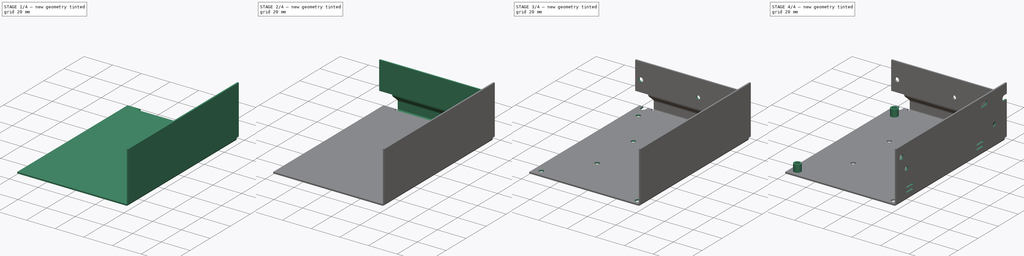
[diagram: build sequence overview — one tinted view per stage of 4, left to right]
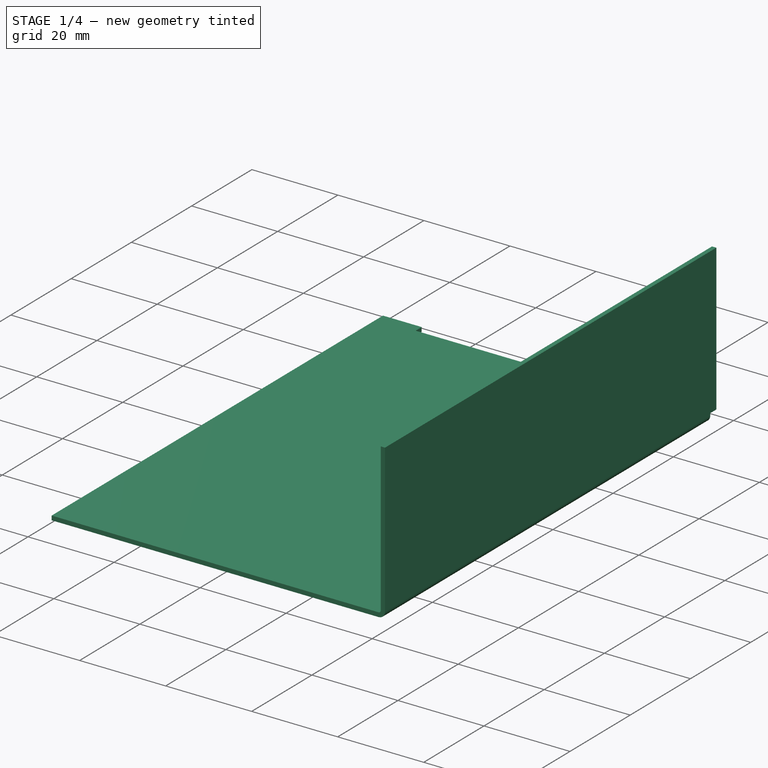
[diagram: stage 1 of 4 — iso view after this stage's code; geometry added in this stage tinted green]
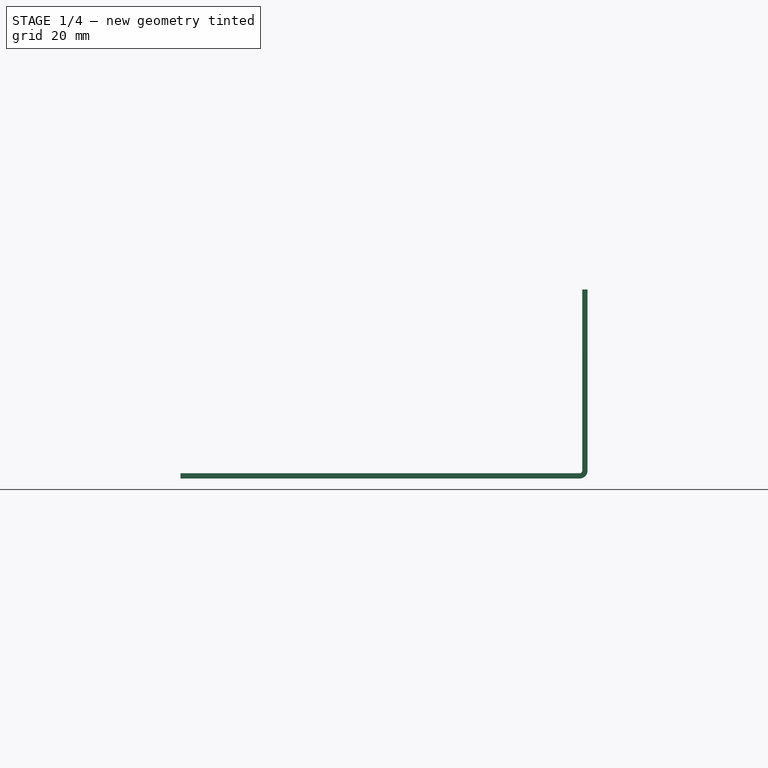
[diagram: stage 1 of 4 — front view after this stage's code; geometry added in this stage tinted green]
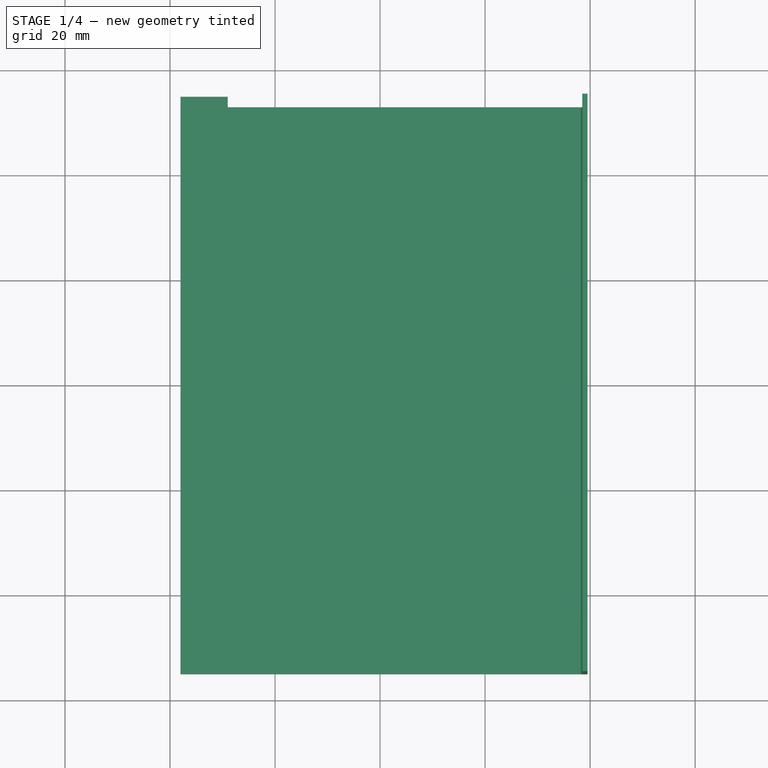
[diagram: stage 1 of 4 — top view after this stage's code; geometry added in this stage tinted green]
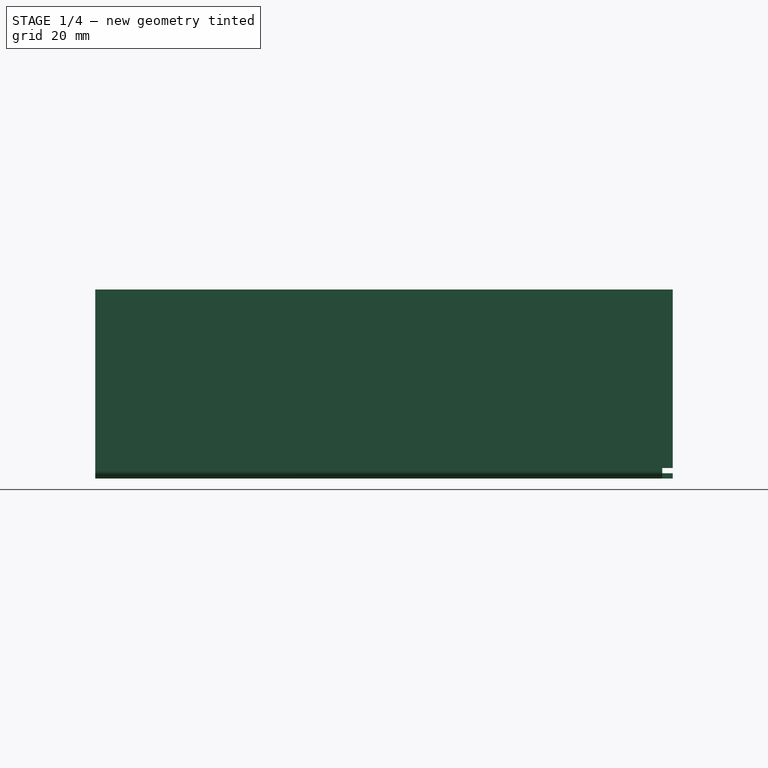
[diagram: stage 1 of 4 — right view after this stage's code; geometry added in this stage tinted green]
FCSTD DOCUMENT  (FreeCAD 0.19R23058 (Git))
Label: bottom_shell
License: All rights reserved
LicenseURL: http://en.wikipedia.org/wiki/All_rights_reserved
objects: PartDesign::Line×17, Sketcher::SketchObject×9, PartDesign::Pocket×5, PartDesign::Pad×4, PartDesign::Plane×1, PartDesign::CoordinateSystem×1, PartDesign::Point×1, PartDesign::Body×1
note: 48 computed .brp shape members not serialized (recipe doc carries the construction recipe); baked Part::Feature solids carry a one-line shape summary decoded from their .brp

FEATURE [Sketcher::SketchObject] Sketch
  MapMode = 5
  Placement = pos=(0,0,0) rot=(1,0,0;1.5708rad)
  Support = -> [XZ_Plane]
  sketch-geometry (8):
    g0: LineSegment StartX=-38 StartY=1 StartZ=0 EndX=-38 EndY=0 EndZ=0
    g1: LineSegment StartX=-38 StartY=0 StartZ=0 EndX=38 EndY=0 EndZ=0
    g2: LineSegment StartX=39.5 StartY=1.5 StartZ=0 EndX=39.5 EndY=36 EndZ=0
    g3: LineSegment StartX=39.5 StartY=36 StartZ=0 EndX=38.5 EndY=36 EndZ=0
    g4: LineSegment StartX=38.5 StartY=36 StartZ=0 EndX=38.5 EndY=1.5 EndZ=0
    g5: LineSegment StartX=38 StartY=1 StartZ=0 EndX=-38 EndY=1 EndZ=0
    g6: ArcOfCircle CenterX=38 CenterY=1.5 CenterZ=0 NormalX=0 NormalY=0 NormalZ=1 AngleXU=0 Radius=0.5 StartAngle=4.71239 EndAngle=6.28319
    g7: ArcOfCircle CenterX=38 CenterY=1.5 CenterZ=0 NormalX=0 NormalY=0 NormalZ=1 AngleXU=0 Radius=1.5 StartAngle=4.71239 EndAngle=6.28319
  constraints (20):
    c: Coincident(g0,g1)
    c: Vertical(g2)
    c: Coincident(g2,g3)
    c: Coincident(g3,g4)
    c: Vertical(g4)
    c: Coincident(g5,g0)
    c: Horizontal(g5)
    c: Tangent(g5,g6) = 1.5708
    c: Tangent(g4,g6) = 1.5708
    c: Tangent(g1,g7) = -1.5708
    c: Tangent(g2,g7) = -1.5708
    c: Vertical(g0)
    c: Horizontal(g3)
    c: PointOnObject(g0,g-1)
    c: Symmetric(g0,g1,g-2)
    c: DistanceY(g0,g0) = 1
    c: Radius(g7) = 1.5
    c: DistanceX(g1,g1) = 76
    c: DistanceY(g2,g2) = 34.5
    c: Coincident(g6,g7)
FEATURE [PartDesign::Pad] Pad
  Direction = (1,1,1)
  Length = 110
  Length2 = 100
  Midplane = true
  Placement = pos=(0,0,0) rot=(1,0,0;1.5708rad)
  Profile = -> Sketch
  Type = 0
FEATURE [Sketcher::SketchObject] Sketch001
  ExternalGeometry = -> [Pad]
  MapMode = 5
  Placement = pos=(39.5,0,0) rot=(0.707107,0,0.707107;3.14159rad)
  Support = -> [Pad]
  sketch-geometry (4):
    g0: LineSegment StartX=-4.55e-14 StartY=-53 StartZ=0 EndX=2 EndY=-53 EndZ=0
    g1: LineSegment StartX=2 StartY=-53 StartZ=0 EndX=2 EndY=-55 EndZ=0
    g2: LineSegment StartX=2 StartY=-55 StartZ=0 EndX=-4.55e-14 EndY=-55 EndZ=0
    g3: LineSegment StartX=-4.55e-14 StartY=-55 StartZ=0 EndX=-4.55e-14 EndY=-53 EndZ=0
  constraints (11):
    c: Coincident(g0,g1)
    c: Coincident(g1,g2)
    c: Coincident(g2,g3)
    c: Coincident(g3,g0)
    c: Horizontal(g0)
    c: Horizontal(g2)
    c: Vertical(g1)
    c: Vertical(g3)
    c: DistanceX(g2,g2) = 2
    c: Equal(g2,g1)
    c: Coincident(g2,g-3)
FEATURE [PartDesign::Pocket] Pocket
  BaseFeature = -> Pad
  Length = 68.5
  Length2 = 100
  Placement = pos=(0,0,0) rot=(1,0,0;1.5708rad)
  Profile = -> Sketch001
  Type = 0
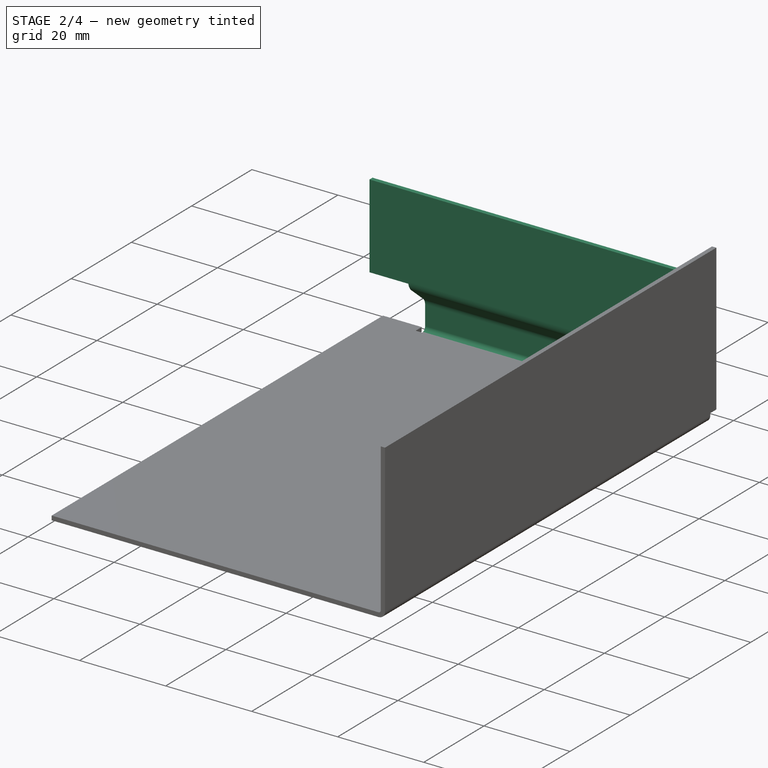
[diagram: stage 2 of 4 — iso view after this stage's code; geometry added in this stage tinted green]
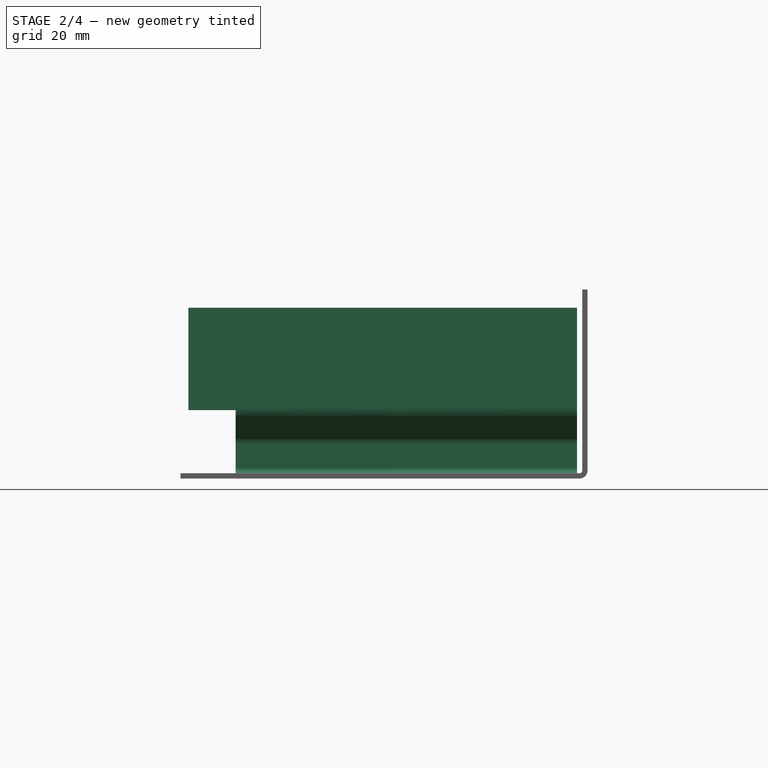
[diagram: stage 2 of 4 — front view after this stage's code; geometry added in this stage tinted green]
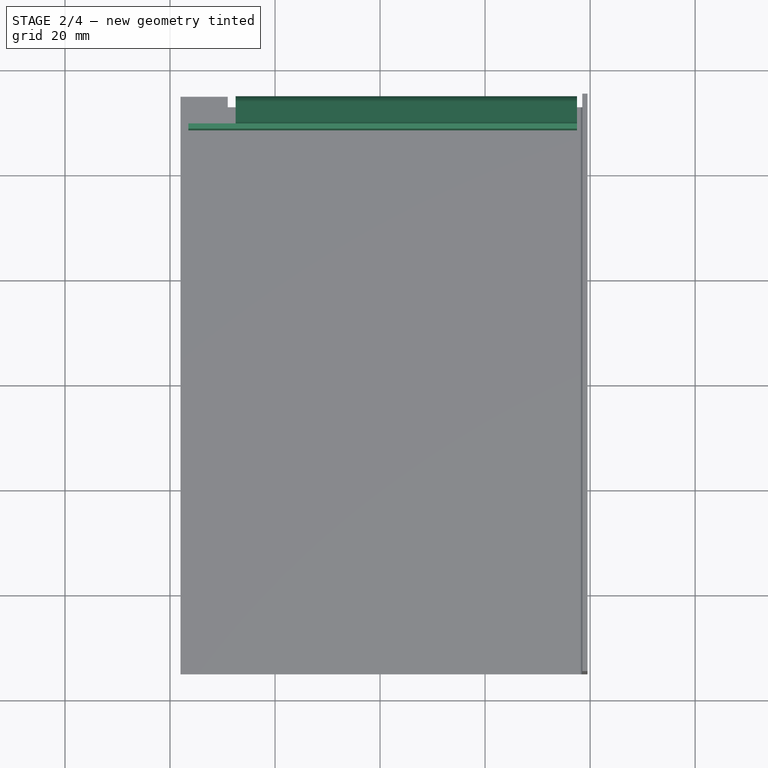
[diagram: stage 2 of 4 — top view after this stage's code; geometry added in this stage tinted green]
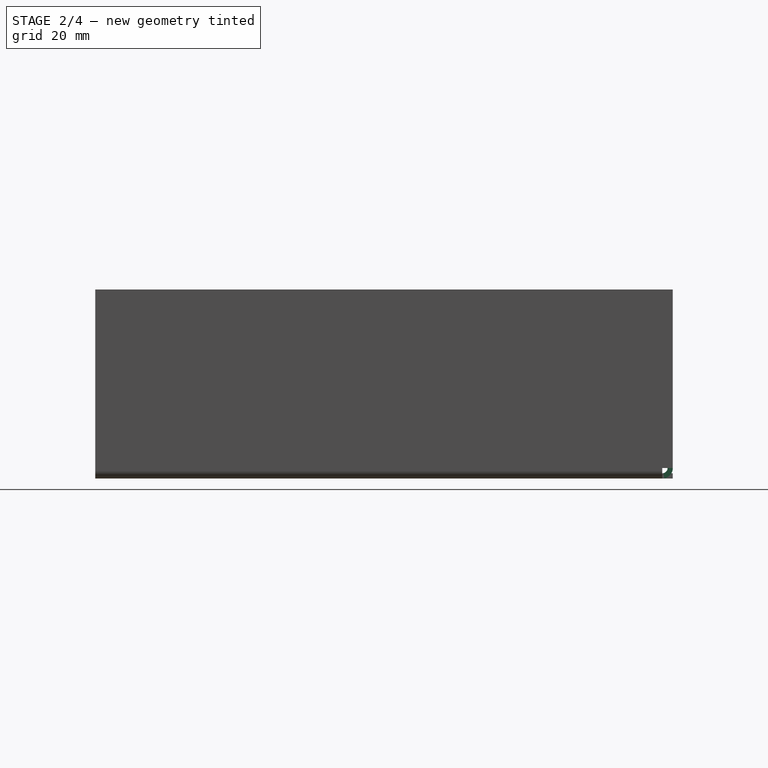
[diagram: stage 2 of 4 — right view after this stage's code; geometry added in this stage tinted green]
FEATURE [PartDesign::Plane] DatumPlane
  AttachmentOffset = pos=(0,0,-2) rot=(0,0,1;0rad)
  Length = 60
  MapMode = 5
  Placement = pos=(37.5,0,4e-16) rot=(0.707107,0,0.707107;3.14159rad)
  ResizeMode = 0
  Support = -> [Pocket]
  Width = 60
FEATURE [Sketcher::SketchObject] Sketch002
  ExternalGeometry = -> [Pocket]
  MapMode = 5
  Placement = pos=(37.5,0,4e-16) rot=(0.707107,0,0.707107;3.14159rad)
  Support = -> [DatumPlane]
  sketch-geometry (14):
    g0: ArcOfCircle CenterX=2 CenterY=-53 CenterZ=0 NormalX=0 NormalY=0 NormalZ=1 AngleXU=0 Radius=2 StartAngle=3.1416 EndAngle=4.71239
    g1: LineSegment StartX=2 StartY=-55 StartZ=0 EndX=6.48793 EndY=-55 EndZ=0
    g2: ArcOfCircle CenterX=6.48793 CenterY=-52 CenterZ=0 NormalX=0 NormalY=0 NormalZ=1 AngleXU=0 Radius=3 StartAngle=4.71239 EndAngle=5.58505
    g3: LineSegment StartX=8.78606 StartY=-53.9284 StartZ=0 EndX=12 EndY=-50.0981 EndZ=0
    g4: ArcOfCircle CenterX=13.5321 CenterY=-51.3837 CenterZ=0 NormalX=0 NormalY=0 NormalZ=1 AngleXU=0 Radius=2 StartAngle=1.5708 EndAngle=2.44346
    g5: LineSegment StartX=13.5321 StartY=-49.3837 StartZ=0 EndX=32.5321 EndY=-49.3837 EndZ=0
    g6: LineSegment StartX=32.5321 StartY=-49.3837 StartZ=0 EndX=32.5321 EndY=-48.3837 EndZ=0
    g7: LineSegment StartX=32.5321 StartY=-48.3837 StartZ=0 EndX=13.5321 EndY=-48.3837 EndZ=0
    g8: LineSegment StartX=11.234 StartY=-49.4553 StartZ=0 EndX=8.02002 EndY=-53.2856 EndZ=0
    g9: LineSegment StartX=6.48793 StartY=-54 StartZ=0 EndX=2 EndY=-54 EndZ=0
    g10: ArcOfCircle CenterX=13.5321 CenterY=-51.3837 CenterZ=0 NormalX=0 NormalY=0 NormalZ=1 AngleXU=0 Radius=3 StartAngle=1.5708 EndAngle=2.44346
    g11: ArcOfCircle CenterX=6.48793 CenterY=-52 CenterZ=0 NormalX=0 NormalY=0 NormalZ=1 AngleXU=0 Radius=2 StartAngle=4.71239 EndAngle=5.58505
    g12: ArcOfCircle CenterX=2 CenterY=-53 CenterZ=0 NormalX=0 NormalY=0 NormalZ=1 AngleXU=0 Radius=1 StartAngle=3.1416 EndAngle=4.71239
    g13: LineSegment StartX=1.47167e-11 StartY=-53 StartZ=0 EndX=1 EndY=-53 EndZ=0
  constraints (34):
    c: Horizontal(g1)
    c: Horizontal(g5)
    c: Coincident(g5,g6)
    c: Vertical(g6)
    c: Coincident(g6,g7)
    c: Horizontal(g7)
    c: Horizontal(g9)
    c: Tangent(g0,g1) = -1.5708
    c: Tangent(g1,g2) = -1.5708
    c: Tangent(g2,g3) = -1.5708
    c: Tangent(g3,g4) = 1.5708
    c: Tangent(g4,g5) = 1.5708
    c: Coincident(g13,g0)
    c: Coincident(g13,g12)
    c: Horizontal(g13)
    c: Tangent(g12,g9) = 1.5708
    c: Tangent(g9,g11) = 1.5708
    c: Tangent(g11,g8) = 1.5708
    c: Tangent(g8,g10) = -1.5708
    c: Tangent(g10,g7) = -1.5708
    c: Tangent(g0,g-2)
    c: DistanceX(g13,g13) = 1
    c: Coincident(g0,g12)
    c: Coincident(g2,g11)
    c: Coincident(g4,g10)
    c: Parallel(g8,g3)
    c: Radius(g0) = 2
    c: Distance(g3) = 5
    c: DistanceX(g5,g5) = 19
    c: Angle(g3,g-2) = 0.698132
    c: Equal(g2,g10)
    c: Radius(g2) = 3
    c: Coincident(g0,g-3)
    c: DistanceX(g0,g3) = 12
FEATURE [PartDesign::Pad] Pad001
  BaseFeature = -> Pocket
  Direction = (1,1,1)
  Length = 65
  Length2 = 100
  Placement = pos=(0,0,0) rot=(1,0,0;1.5708rad)
  Profile = -> Sketch002
  Reversed = true
  Type = 0
FEATURE [Sketcher::SketchObject] Sketch003
  ExternalGeometry = -> [Pad001]
  MapMode = 5
  Placement = pos=(-27.5,1.35e-14,9.4e-15) rot=(-0.707107,0,0.707107;3.14159rad)
  Support = -> [Pad001]
  sketch-geometry (4):
    g0: LineSegment StartX=-32.5321 StartY=-48.3837 StartZ=0 EndX=-13.0321 EndY=-48.3837 EndZ=0
    g1: LineSegment StartX=-13.0321 StartY=-48.3837 StartZ=0 EndX=-13.0321 EndY=-49.3837 EndZ=0
    g2: LineSegment StartX=-13.0321 StartY=-49.3837 StartZ=0 EndX=-32.5321 EndY=-49.3837 EndZ=0
    g3: LineSegment StartX=-32.5321 StartY=-49.3837 StartZ=0 EndX=-32.5321 EndY=-48.3837 EndZ=0
  constraints (10):
    c: Coincident(g0,g1)
    c: Coincident(g1,g2)
    c: Coincident(g2,g3)
    c: Coincident(g3,g0)
    c: Horizontal(g0)
    c: Horizontal(g2)
    c: Vertical(g1)
    c: Coincident(g0,g-3)
    c: Coincident(g2,g-3)
    c: DistanceX(g2,g2) = 19.5
FEATURE [PartDesign::Pad] Pad002
  BaseFeature = -> Pad001
  Direction = (1,1,1)
  Length = 9
  Length2 = 100
  Placement = pos=(0,0,0) rot=(1,0,0;1.5708rad)
  Profile = -> Sketch003
  Type = 0
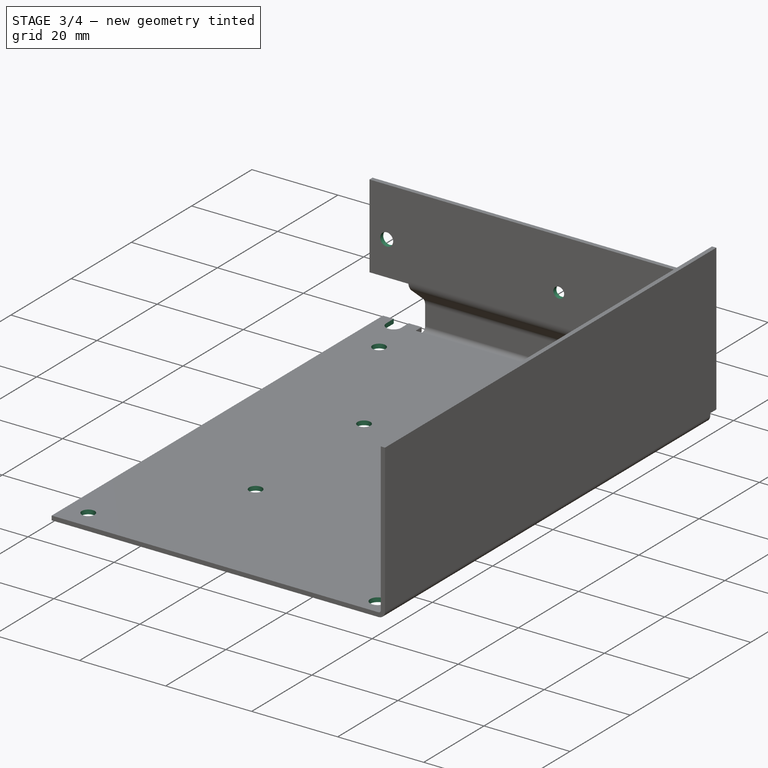
[diagram: stage 3 of 4 — iso view after this stage's code; geometry added in this stage tinted green]
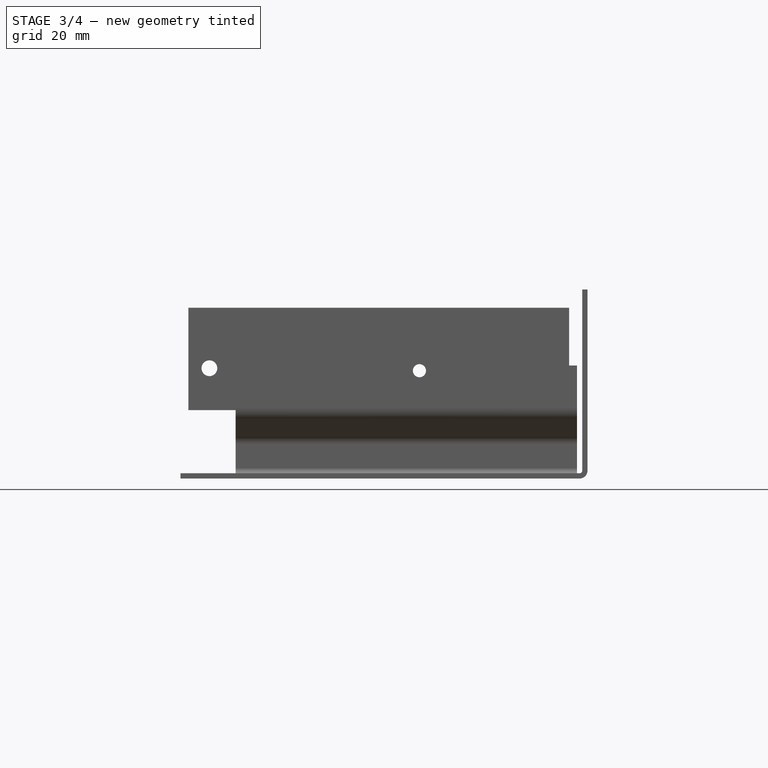
[diagram: stage 3 of 4 — front view after this stage's code; geometry added in this stage tinted green]
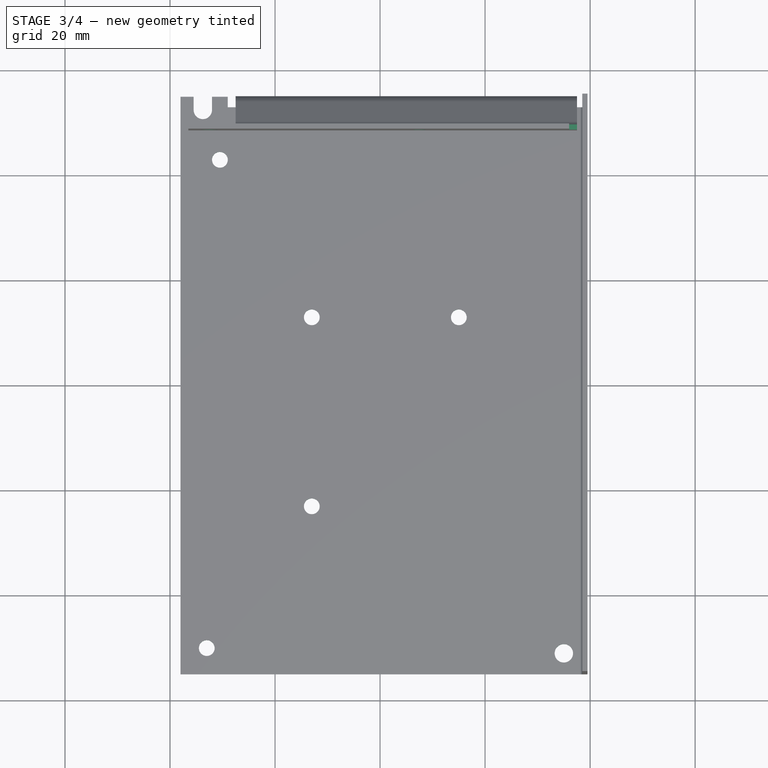
[diagram: stage 3 of 4 — top view after this stage's code; geometry added in this stage tinted green]
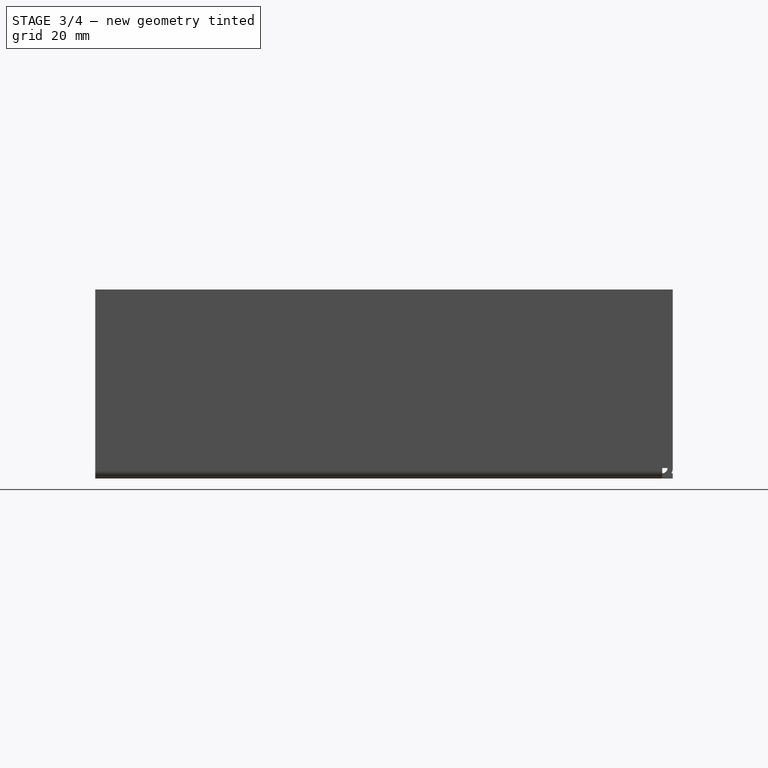
[diagram: stage 3 of 4 — right view after this stage's code; geometry added in this stage tinted green]
FEATURE [Sketcher::SketchObject] Sketch004
  ExternalGeometry = -> [Pad002]
  MapMode = 5
  Placement = pos=(0,49.3837,0) rot=(-1,0,0;1.5708rad)
  Support = -> [Pad002]
  sketch-geometry (4):
    g0: LineSegment StartX=37.5 StartY=-32.5321 StartZ=0 EndX=36 EndY=-32.5321 EndZ=0
    g1: LineSegment StartX=36 StartY=-32.5321 StartZ=0 EndX=36 EndY=-21.5321 EndZ=0
    g2: LineSegment StartX=36 StartY=-21.5321 StartZ=0 EndX=37.5 EndY=-21.5321 EndZ=0
    g3: LineSegment StartX=37.5 StartY=-21.5321 StartZ=0 EndX=37.5 EndY=-32.5321 EndZ=0
  constraints (11):
    c: Coincident(g0,g1)
    c: Coincident(g1,g2)
    c: Coincident(g2,g3)
    c: Coincident(g3,g0)
    c: Horizontal(g0)
    c: Horizontal(g2)
    c: Vertical(g1)
    c: Vertical(g3)
    c: Coincident(g0,g-3)
    c: DistanceX(g0,g0) = 1.5
    c: DistanceY(g1,g1) = 11
FEATURE [PartDesign::Pocket] Pocket001
  BaseFeature = -> Pad002
  Length = 5
  Length2 = 100
  Placement = pos=(0,0,0) rot=(1,0,0;1.5708rad)
  Profile = -> Sketch004
  Type = 0
FEATURE [Sketcher::SketchObject] Sketch005
  ExternalGeometry = -> [Pocket001]
  MapMode = 5
  Placement = pos=(0,49.3837,0) rot=(-1,0,0;1.5708rad)
  Support = -> [Pocket001]
  sketch-geometry (2):
    g0: Circle CenterX=7.5 CenterY=-20.5321 CenterZ=0 NormalX=0 NormalY=0 NormalZ=1 AngleXU=0 Radius=1.25
    g1: Circle CenterX=-32.5 CenterY=-21 CenterZ=0 NormalX=0 NormalY=0 NormalZ=1 AngleXU=0 Radius=1.5
  constraints (6):
    c: DistanceY(g-3,g0) = 12
    c: DistanceX(g0,g-4) = 30
    c: DistanceX(g1,g-4) = 70
    c: Radius(g0) = 1.25
    c: Radius(g1) = 1.5
    c: DistanceY(g1,g-1) = 21
FEATURE [PartDesign::Pocket] Pocket002
  BaseFeature = -> Pocket001
  Length = 5
  Length2 = 100
  Placement = pos=(0,0,0) rot=(1,0,0;1.5708rad)
  Profile = -> Sketch005
  Type = 0
FEATURE [PartDesign::Line] HoleAxis_1
  AttacherType = Attacher::AttachEngineLine
  Length = 3.52267
  MapMode = 19
  Placement = pos=(7.5,49.3837,20.5321) rot=(-1,0,0;1.5708rad)
  ResizeMode = 1
  Support = -> [Pocket002]
FEATURE [PartDesign::Line] HoleAxis_2
  AttacherType = Attacher::AttachEngineLine
  Length = 4.2272
  MapMode = 19
  Placement = pos=(-32.5,49.3837,21) rot=(-1,0,0;1.5708rad)
  ResizeMode = 1
  Support = -> [Pocket002]
FEATURE [Sketcher::SketchObject] Sketch006
  ExternalGeometry = -> [Pocket002]
  MapMode = 5
  Placement = pos=(0,0,0) rot=(1,0,0;3.14159rad)
  Support = -> [Pocket002]
  sketch-geometry (14):
    g0: ArcOfCircle CenterX=-33.75 CenterY=-52.5 CenterZ=0 NormalX=0 NormalY=0 NormalZ=1 AngleXU=0 Radius=1.75 StartAngle=0 EndAngle=3.14159
    g1: LineSegment StartX=-32 StartY=-52.5 StartZ=0 EndX=-32 EndY=-55 EndZ=0
    g2: LineSegment StartX=-32 StartY=-55 StartZ=0 EndX=-35.5 EndY=-55 EndZ=0
    g3: LineSegment StartX=-35.5 StartY=-55 StartZ=0 EndX=-35.5 EndY=-52.5 EndZ=0
    g4: LineSegment [constr] StartX=-13 StartY=23 StartZ=0 EndX=15 EndY=23 EndZ=0
    g5: LineSegment [constr] StartX=15 StartY=23 StartZ=0 EndX=15 EndY=-13 EndZ=0
    g6: LineSegment [constr] StartX=15 StartY=-13 StartZ=0 EndX=-13 EndY=-13 EndZ=0
    g7: LineSegment [constr] StartX=-13 StartY=-13 StartZ=0 EndX=-13 EndY=23 EndZ=0
    g8: Circle CenterX=-33 CenterY=50 CenterZ=0 NormalX=0 NormalY=0 NormalZ=1 AngleXU=0 Radius=1.5
    g9: Circle CenterX=-30.5 CenterY=-43 CenterZ=0 NormalX=0 NormalY=0 NormalZ=1 AngleXU=0 Radius=1.5
    g10: Circle CenterX=35 CenterY=51 CenterZ=0 NormalX=0 NormalY=0 NormalZ=1 AngleXU=0 Radius=1.75
    g11: Circle CenterX=-13 CenterY=23 CenterZ=0 NormalX=0 NormalY=0 NormalZ=1 AngleXU=0 Radius=1.5
    g12: Circle CenterX=-13 CenterY=-13 CenterZ=0 NormalX=0 NormalY=0 NormalZ=1 AngleXU=0 Radius=1.5
    g13: Circle CenterX=15 CenterY=-13 CenterZ=0 NormalX=0 NormalY=0 NormalZ=1 AngleXU=0 Radius=1.5
  constraints (38):
    c: Coincident(g1,g2)
    c: Coincident(g2,g3)
    c: Horizontal(g2)
    c: Vertical(g1)
    c: Vertical(g3)
    c: Tangent(g3,g0) = 1.5708
    c: Tangent(g1,g0) = 1.5708
    c: DistanceY(g3,g3) = 2.5
    c: DistanceX(g2,g2) = 3.5
    c: PointOnObject(g2,g-3)
    c: DistanceX(g-3,g2) = 2.5
    c: Coincident(g4,g5)
    c: Coincident(g5,g6)
    c: Coincident(g6,g7)
    c: Coincident(g7,g4)
    c: Horizontal(g4)
    c: Horizontal(g6)
    c: Vertical(g5)
    c: Vertical(g7)
    c: Coincident(g11,g4)
    c: Coincident(g12,g6)
    c: Coincident(g13,g5)
    c: Radius(g11) = 1.5
    c: Equal(g11,g12)
    c: Equal(g12,g13)
    c: Equal(g8,g11)
    c: Equal(g11,g9)
    c: DistanceY(g7,g7) = 36
    c: DistanceX(g6,g6) = 28
    c: DistanceX(g-3,g12) = 25
    c: DistanceY(g11,g-4) = 32
    c: DistanceY(g8,g-4) = 5
    c: DistanceX(g-4,g8) = 5
    c: DistanceY(g-3,g9) = 12
    c: DistanceX(g-3,g9) = 7.5
    c: DistanceX(g10,g-4) = 3
    c: Radius(g10) = 1.75
    c: DistanceY(g10,g-4) = 4
FEATURE [PartDesign::Pocket] Pocket003
  BaseFeature = -> Pocket002
  Length = 5
  Length2 = 100
  Placement = pos=(0,0,0) rot=(1,0,0;1.5708rad)
  Profile = -> Sketch006
  Type = 0
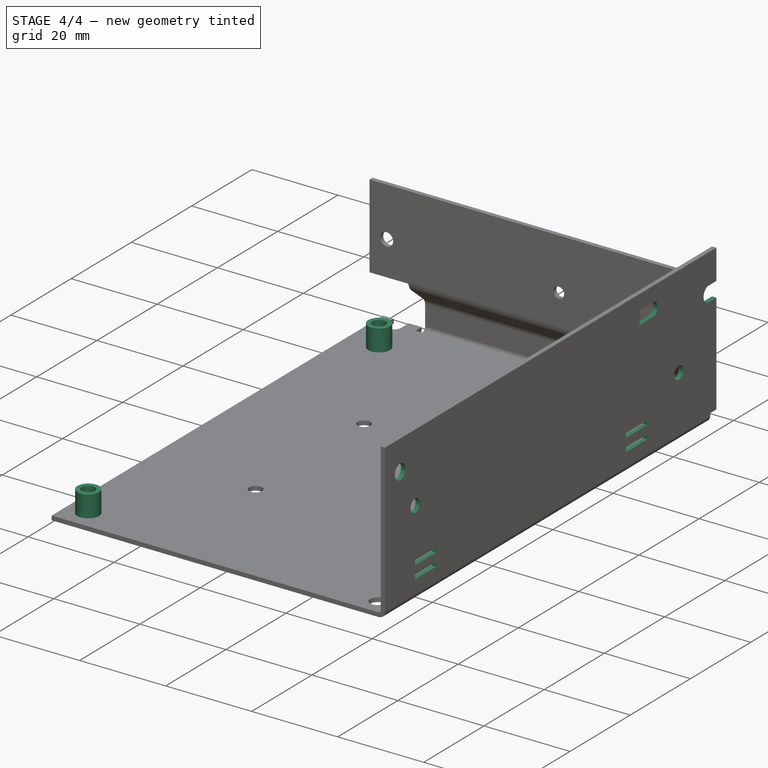
[diagram: stage 4 of 4 — iso view after this stage's code; geometry added in this stage tinted green]
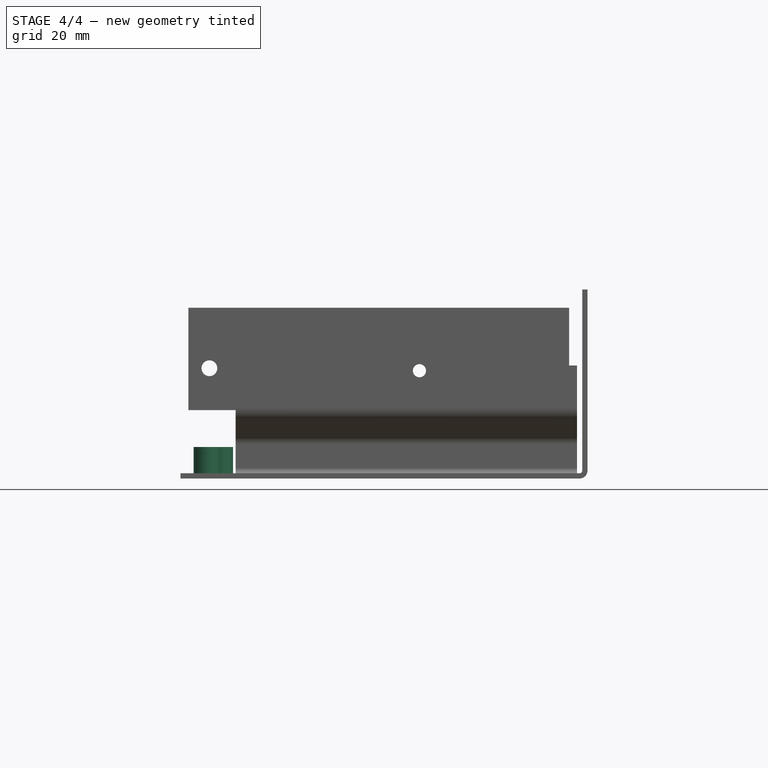
[diagram: stage 4 of 4 — front view after this stage's code; geometry added in this stage tinted green]
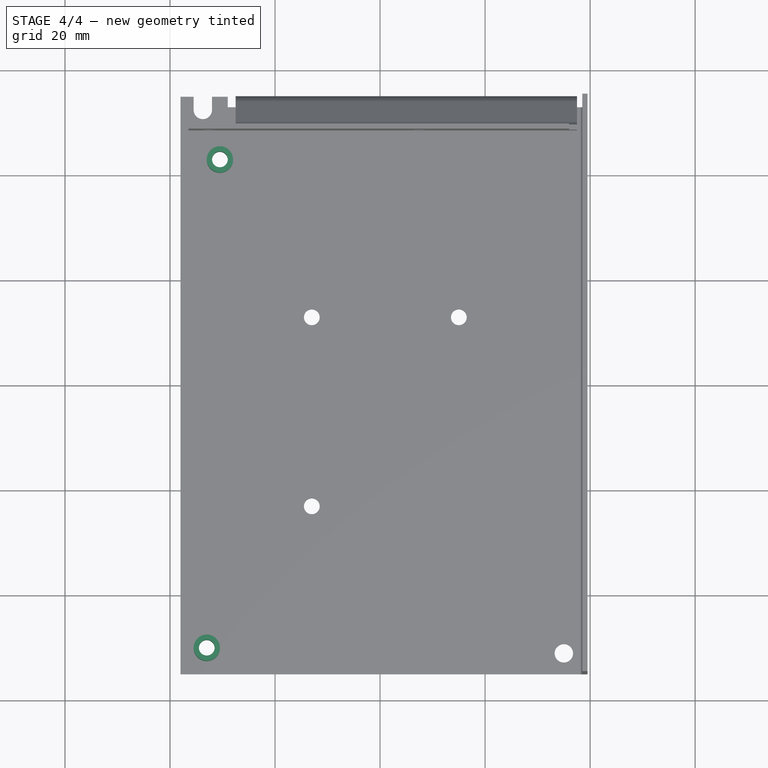
[diagram: stage 4 of 4 — top view after this stage's code; geometry added in this stage tinted green]
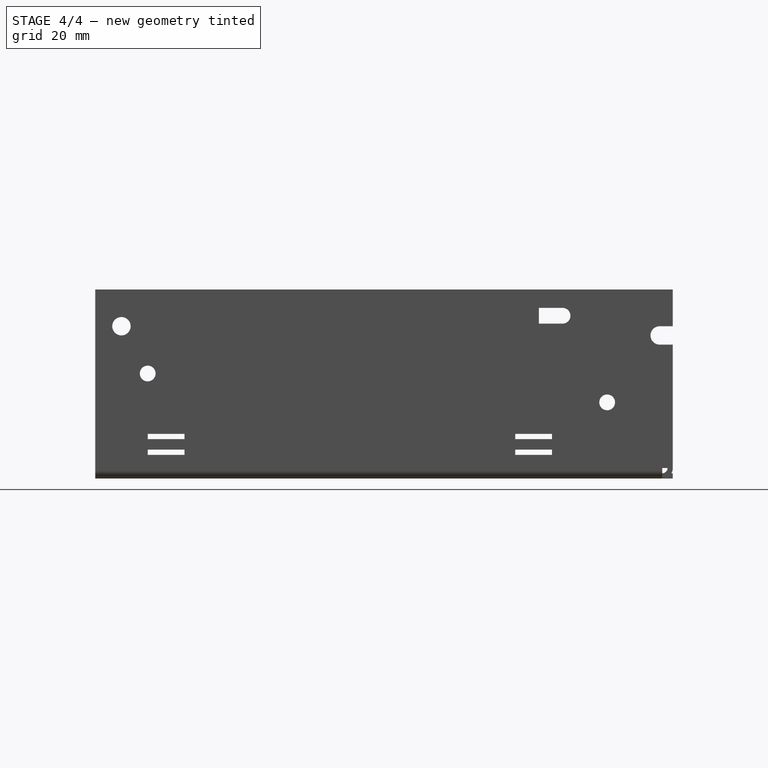
[diagram: stage 4 of 4 — right view after this stage's code; geometry added in this stage tinted green]
FEATURE [Sketcher::SketchObject] Sketch007
  ExternalGeometry = -> [Pocket003]
  MapMode = 5
  Placement = pos=(39.5,0,0) rot=(0.707107,0,0.707107;3.14159rad)
  Support = -> [Pocket003]
  sketch-geometry (31):
    g0: Circle CenterX=29 CenterY=50 CenterZ=0 NormalX=0 NormalY=0 NormalZ=1 AngleXU=0 Radius=1.75
    g1: Circle CenterX=20 CenterY=45 CenterZ=0 NormalX=0 NormalY=0 NormalZ=1 AngleXU=0 Radius=1.5
    g2: Circle CenterX=14.5 CenterY=-42.5 CenterZ=0 NormalX=0 NormalY=0 NormalZ=1 AngleXU=0 Radius=1.5
    g3: LineSegment StartX=7.5 StartY=45 StartZ=0 EndX=8.5 EndY=45 EndZ=0
    g4: LineSegment StartX=8.5 StartY=45 StartZ=0 EndX=8.5 EndY=38 EndZ=0
    g5: LineSegment StartX=8.5 StartY=38 StartZ=0 EndX=7.5 EndY=38 EndZ=0
    g6: LineSegment StartX=7.5 StartY=38 StartZ=0 EndX=7.5 EndY=45 EndZ=0
    g7: LineSegment StartX=4.5 StartY=45 StartZ=0 EndX=5.5 EndY=45 EndZ=0
    g8: LineSegment StartX=5.5 StartY=45 StartZ=0 EndX=5.5 EndY=38 EndZ=0
    g9: LineSegment StartX=5.5 StartY=38 StartZ=0 EndX=4.5 EndY=38 EndZ=0
    g10: LineSegment StartX=4.5 StartY=38 StartZ=0 EndX=4.5 EndY=45 EndZ=0
    g11: LineSegment StartX=7.5 StartY=-25 StartZ=0 EndX=8.5 EndY=-25 EndZ=0
    g12: LineSegment StartX=8.5 StartY=-25 StartZ=0 EndX=8.5 EndY=-32 EndZ=0
    g13: LineSegment StartX=8.5 StartY=-32 StartZ=0 EndX=7.5 EndY=-32 EndZ=0
    g14: LineSegment StartX=7.5 StartY=-32 StartZ=0 EndX=7.5 EndY=-25 EndZ=0
    g15: LineSegment StartX=4.5 StartY=-25 StartZ=0 EndX=5.5 EndY=-25 EndZ=0
    g16: LineSegment StartX=5.5 StartY=-25 StartZ=0 EndX=5.5 EndY=-32 EndZ=0
    g17: LineSegment StartX=5.5 StartY=-32 StartZ=0 EndX=4.5 EndY=-32 EndZ=0
    g18: LineSegment StartX=4.5 StartY=-32 StartZ=0 EndX=4.5 EndY=-25 EndZ=0
    g19: LineSegment [constr] StartX=5.5 StartY=38 StartZ=0 EndX=7.5 EndY=38 EndZ=0
    g20: LineSegment [constr] StartX=7.5 StartY=38 StartZ=0 EndX=7.5 EndY=-25 EndZ=0
    g21: LineSegment [constr] StartX=7.5 StartY=-25 StartZ=0 EndX=5.5 EndY=-25 EndZ=0
    g22: LineSegment [constr] StartX=5.5 StartY=-25 StartZ=0 EndX=5.5 EndY=38 EndZ=0
    g23: ArcOfCircle CenterX=27.25 CenterY=-52.5 CenterZ=0 NormalX=0 NormalY=0 NormalZ=1 AngleXU=0 Radius=1.75 StartAngle=2e-16 EndAngle=3.14159
    g24: LineSegment StartX=25.5 StartY=-52.5 StartZ=0 EndX=25.5 EndY=-55 EndZ=0
    g25: LineSegment StartX=25.5 StartY=-55 StartZ=0 EndX=29 EndY=-55 EndZ=0
    g26: LineSegment StartX=29 StartY=-55 StartZ=0 EndX=29 EndY=-52.5 EndZ=0
    g27: ArcOfCircle CenterX=31 CenterY=-34 CenterZ=0 NormalX=0 NormalY=0 NormalZ=1 AngleXU=0 Radius=1.5 StartAngle=3.14159 EndAngle=6.28319
    g28: LineSegment StartX=29.5 StartY=-34 StartZ=0 EndX=29.5 EndY=-29.5 EndZ=0
    g29: LineSegment StartX=29.5 StartY=-29.5 StartZ=0 EndX=32.5 EndY=-29.5 EndZ=0
    g30: LineSegment StartX=32.5 StartY=-29.5 StartZ=0 EndX=32.5 EndY=-34 EndZ=0
  constraints (87):
    c: Coincident(g3,g4)
    c: Coincident(g4,g5)
    c: Coincident(g5,g6)
    c: Coincident(g6,g3)
    c: Horizontal(g3)
    c: Horizontal(g5)
    c: Vertical(g4)
    c: Vertical(g6)
    c: Coincident(g7,g8)
    c: Coincident(g8,g9)
    c: Coincident(g9,g10)
    c: Coincident(g10,g7)
    c: Horizontal(g7)
    c: Horizontal(g9)
    c: Vertical(g8)
    c: Vertical(g10)
    c: Coincident(g11,g12)
    c: Coincident(g12,g13)
    c: Coincident(g13,g14)
    c: Coincident(g14,g11)
    c: Horizontal(g11)
    c: Horizontal(g13)
    c: Vertical(g12)
    c: Vertical(g14)
    c: Coincident(g15,g16)
    c: Coincident(g16,g17)
    c: Coincident(g17,g18)
    c: Coincident(g18,g15)
    c: Horizontal(g15)
    c: Horizontal(g17)
    c: Vertical(g16)
    c: Vertical(g18)
    c: Coincident(g19,g20)
    c: Coincident(g20,g21)
    c: Coincident(g21,g22)
    c: Coincident(g22,g19)
    c: Horizontal(g19)
    c: Horizontal(g21)
    c: Vertical(g20)
    c: Vertical(g22)
    c: Coincident(g19,g8)
    c: Coincident(g20,g11)
    c: Coincident(g5,g19)
    c: Coincident(g15,g21)
    c: Equal(g15,g11)
    c: Equal(g11,g5)
    c: Equal(g5,g9)
    c: Equal(g10,g6)
    c: Equal(g6,g18)
    c: Equal(g18,g14)
    c: DistanceX(g7,g7) = 1
    c: DistanceY(g10,g10) = 7
    c: DistanceX(g19,g19) = 2
    c: DistanceY(g7,g-3) = 10
    c: Radius(g1) = 1.5
    c: Equal(g1,g2)
    c: Vertical(g24)
    c: Coincident(g24,g25)
    c: Horizontal(g25)
    c: Coincident(g25,g26)
    c: Vertical(g26)
    c: Tangent(g24,g23) = -1.5708
    c: Tangent(g26,g23) = -1.5708
    c: DistanceY(g26,g26) = 2.5
    c: DistanceX(g25,g25) = 3.5
    c: PointOnObject(g25,g-4)
    c: DistanceX(g25,g-4) = 7
    c: DistanceX(g-3,g7) = 3
    c: Radius(g0) = 1.75
    c: DistanceX(g0,g-3) = 7
    c: DistanceY(g0,g-3) = 5
    c: DistanceX(g1,g-3) = 16
    c: DistanceY(g1,g-3) = 10
    c: DistanceY(g-4,g2) = 12.5
    c: DistanceX(g2,g-4) = 21.5
    c: DistanceY(g22,g22) = 63
    c: Vertical(g28)
    c: Coincident(g28,g29)
    c: Horizontal(g29)
    c: Coincident(g29,g30)
    c: Vertical(g30)
    c: Tangent(g27,g28) = 1.5708
    c: Tangent(g30,g27) = 1.5708
    c: DistanceX(g29,g29) = 3
    c: DistanceY(g30,g30) = 4.5
    c: DistanceX(g27,g-4) = 5
    c: DistanceY(g-4,g27) = 21
FEATURE [PartDesign::Pocket] Pocket004
  BaseFeature = -> Pocket003
  Length = 5
  Length2 = 100
  Placement = pos=(0,0,0) rot=(1,0,0;1.5708rad)
  Profile = -> Sketch007
  Type = 0
FEATURE [PartDesign::CoordinateSystem] LCS_1
  AttacherType = Attacher::AttachEngine3D
FEATURE [PartDesign::Line] HoleAxis_3  label="Screw_1"
  AttacherType = Attacher::AttachEngineLine
  Length = 4.2272
  MapMode = 19
  Placement = pos=(-13,-23,0) rot=(-1,0,0;3.14159rad)
  ResizeMode = 1
  Support = -> [Pocket004]
FEATURE [PartDesign::Line] HoleAxis_4  label="Screw_2"
  AttacherType = Attacher::AttachEngineLine
  Length = 4.2272
  MapMode = 19
  Placement = pos=(-13,13,0) rot=(-1,0,0;3.14159rad)
  ResizeMode = 1
  Support = -> [Pocket004]
FEATURE [PartDesign::Line] HoleAxis_5  label="Screw_3"
  AttacherType = Attacher::AttachEngineLine
  Length = 4.2272
  MapMode = 19
  Placement = pos=(15,13,0) rot=(-1,0,0;3.14159rad)
  ResizeMode = 1
  Support = -> [Pocket004]
FEATURE [PartDesign::Line] HoleAxis_6  label="Screw_4"
  AttacherType = Attacher::AttachEngineLine
  Length = 4.2272
  MapMode = 19
  Placement = pos=(39.5,-45,20) rot=(0.707107,0,0.707107;3.14159rad)
  ResizeMode = 1
  Support = -> [Pocket004]
FEATURE [PartDesign::Line] HoleAxis_7  label="Screw_5"
  AttacherType = Attacher::AttachEngineLine
  Length = 4.2272
  MapMode = 19
  Placement = pos=(39.5,42.5,14.5) rot=(0.707107,0,0.707107;3.14159rad)
  ResizeMode = 1
  Support = -> [Pocket004]
FEATURE [PartDesign::Line] HoleAxis_8  label="Screw_6"
  AttacherType = Attacher::AttachEngineLine
  Length = 4.2272
  MapMode = 19
  Placement = pos=(-33,-50,0) rot=(-1,0,0;3.14159rad)
  ResizeMode = 1
  Support = -> [Pocket004]
FEATURE [PartDesign::Line] HoleAxis_9  label="Screw_7"
  AttacherType = Attacher::AttachEngineLine
  Length = 4.2272
  MapMode = 19
  Placement = pos=(-30.5,43,0) rot=(-1,0,0;3.14159rad)
  ResizeMode = 1
  Support = -> [Pocket004]
FEATURE [PartDesign::Line] HoleAxis_10  label="Fastnr_1_R"
  AttacherType = Attacher::AttachEngineLine
  Length = 4.93174
  MapMode = 19
  Placement = pos=(35,-51,0) rot=(-1,0,0;3.14159rad)
  ResizeMode = 1
  Support = -> [Pocket004]
FEATURE [PartDesign::Line] HoleAxis_11  label="Fastnr_2_R"
  AttacherType = Attacher::AttachEngineLine
  Length = 3.90743
  MapMode = 19
  Placement = pos=(-33.75,52.5,0) rot=(-1,0,0;3.14159rad)
  ResizeMode = 1
  Support = -> [Pocket004]
FEATURE [PartDesign::Line] HoleAxis_12  label="Fastnr_3_R"
  AttacherType = Attacher::AttachEngineLine
  Length = 3.90743
  MapMode = 19
  Placement = pos=(39.5,52.5,27.25) rot=(0.707107,0,0.707107;3.14159rad)
  ResizeMode = 1
  Support = -> [Pocket004]
FEATURE [PartDesign::Line] HoleAxis_13  label="Fastnr_1_F"
  AttacherType = Attacher::AttachEngineLine
  Length = 4.93174
  MapMode = 19
  Placement = pos=(35,-51,1) rot=(-1,0,0;3.14159rad)
  ResizeMode = 1
  Support = -> [Pocket004]
FEATURE [PartDesign::Line] HoleAxis_14  label="Fastnr_2_F"
  AttacherType = Attacher::AttachEngineLine
  Length = 3.90743
  MapMode = 19
  Placement = pos=(-33.75,52.5,1) rot=(-1,0,0;3.14159rad)
  ResizeMode = 1
  Support = -> [Pocket004]
FEATURE [PartDesign::Line] HoleAxis_15  label="Fastnr_3_F"
  AttacherType = Attacher::AttachEngineLine
  Length = 3.90743
  MapMode = 19
  Placement = pos=(38.5,52.5,27.25) rot=(-0.707107,0,-0.707107;3.14159rad)
  ResizeMode = 1
  Support = -> [Pocket004]
FEATURE [Sketcher::SketchObject] Sketch008
  ExternalGeometry = -> [Pocket004]
  MapMode = 5
  Placement = pos=(0,0,1) rot=(0,0,1;3.14159rad)
  Support = -> [Pocket004]
  sketch-geometry (4):
    g0: Circle CenterX=33 CenterY=50 CenterZ=0 NormalX=0 NormalY=0 NormalZ=1 AngleXU=0 Radius=2.5
    g1: Circle CenterX=33 CenterY=50 CenterZ=0 NormalX=0 NormalY=0 NormalZ=1 AngleXU=0 Radius=1.5
    g2: Circle CenterX=30.5 CenterY=-43 CenterZ=0 NormalX=0 NormalY=0 NormalZ=1 AngleXU=0 Radius=2.5
    g3: Circle CenterX=30.5 CenterY=-43 CenterZ=0 NormalX=0 NormalY=0 NormalZ=1 AngleXU=0 Radius=1.5
  constraints (8):
    c: Coincident(g0,g-3)
    c: Coincident(g1,g0)
    c: Coincident(g2,g-4)
    c: Coincident(g3,g2)
    c: Radius(g0) = 2.5
    c: Equal(g0,g2)
    c: Equal(g1,g-3)
    c: Equal(g3,g-4)
FEATURE [PartDesign::Pad] Pad003
  BaseFeature = -> Pocket004
  Direction = (1,1,1)
  Length = 5
  Length2 = 100
  Placement = pos=(0,0,0) rot=(1,0,0;1.5708rad)
  Profile = -> Sketch008
  Type = 0
FEATURE [PartDesign::Line] HoleAxis_16
  AttacherType = Attacher::AttachEngineLine
  Length = 4.2272
  MapMode = 19
  Placement = pos=(-33,-50,6) rot=(0,0,1;3.14159rad)
  ResizeMode = 1
  Support = -> [Pad003]
FEATURE [PartDesign::Line] HoleAxis_17
  AttacherType = Attacher::AttachEngineLine
  Length = 4.2272
  MapMode = 19
  Placement = pos=(-30.5,43,6) rot=(0,0,1;3.14159rad)
  ResizeMode = 1
  Support = -> [Pad003]
FEATURE [PartDesign::Point] Label_1
  AttacherType = Attacher::AttachEnginePoint
  AttachmentOffset = pos=(0,-35,-3) rot=(0,0,1;0rad)
  MapMode = 39
  Placement = pos=(39.5,20,33) rot=(0,0,1;0rad)
  Support = -> [Pad003]
FEATURE [PartDesign::Body] Body
  Group = -> [Sketch,Pad,Sketch001,Pocket,DatumPlane,Sketch002,Pad001,Sketch003,Pad002,Sketch004,Pocket001,Sketch005,Pocket002,HoleAxis_1,HoleAxis_2,Sketch006,Pocket003,Sketch007,Pocket004,LCS_1,HoleAxis_3,HoleAxis_4,HoleAxis_5,HoleAxis_6,HoleAxis_7,HoleAxis_8,HoleAxis_9,HoleAxis_10,HoleAxis_11,HoleAxis_12,HoleAxis_13,HoleAxis_14,HoleAxis_15,Sketch008,Pad003,HoleAxis_16,HoleAxis_17,Label_1]
  Origin = -> Origin
  Tip = -> Pad003
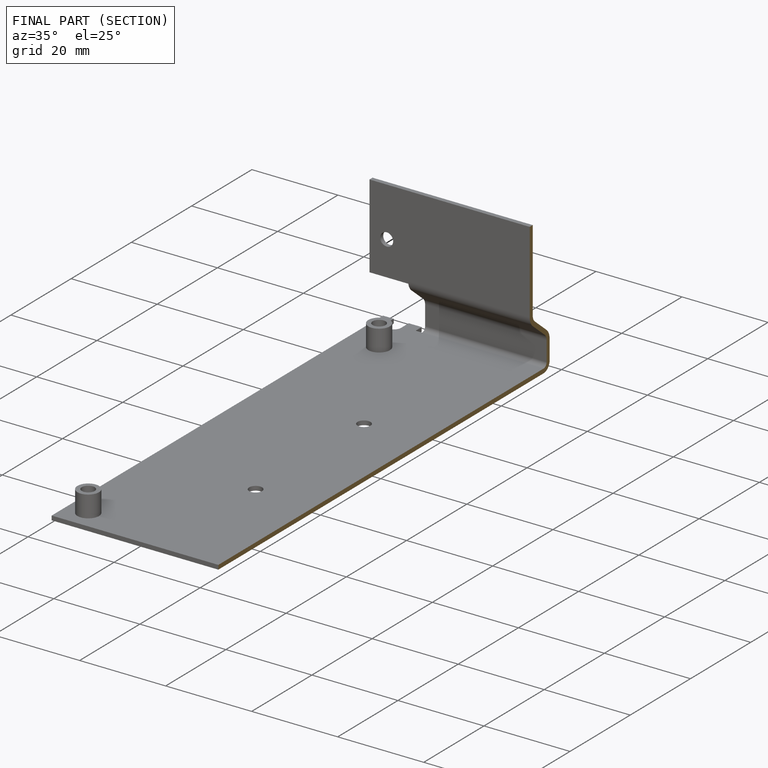
[diagram: finished part — half-section view (interior)]
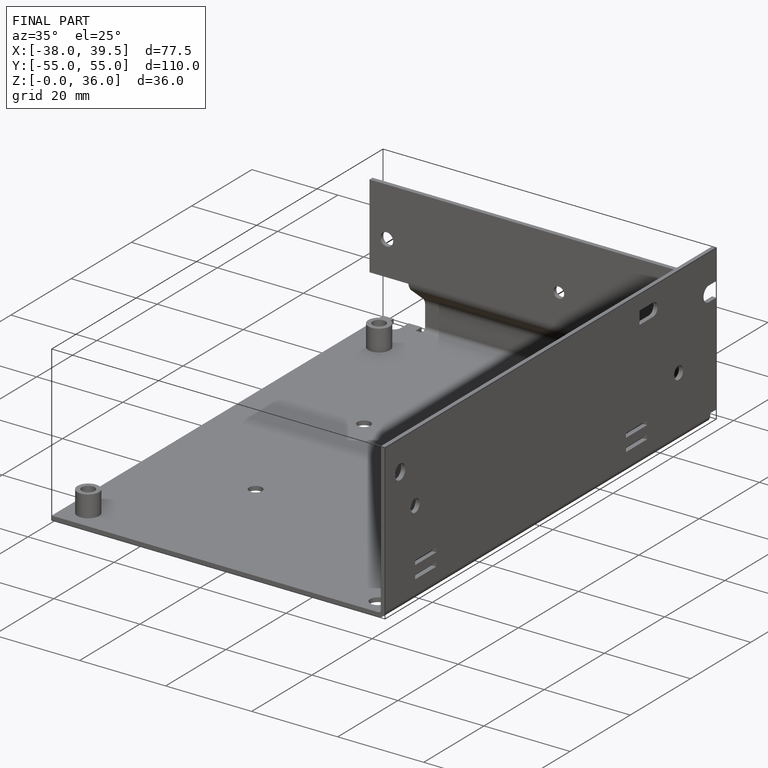
[diagram: finished part — iso view with bounding-box wireframe]
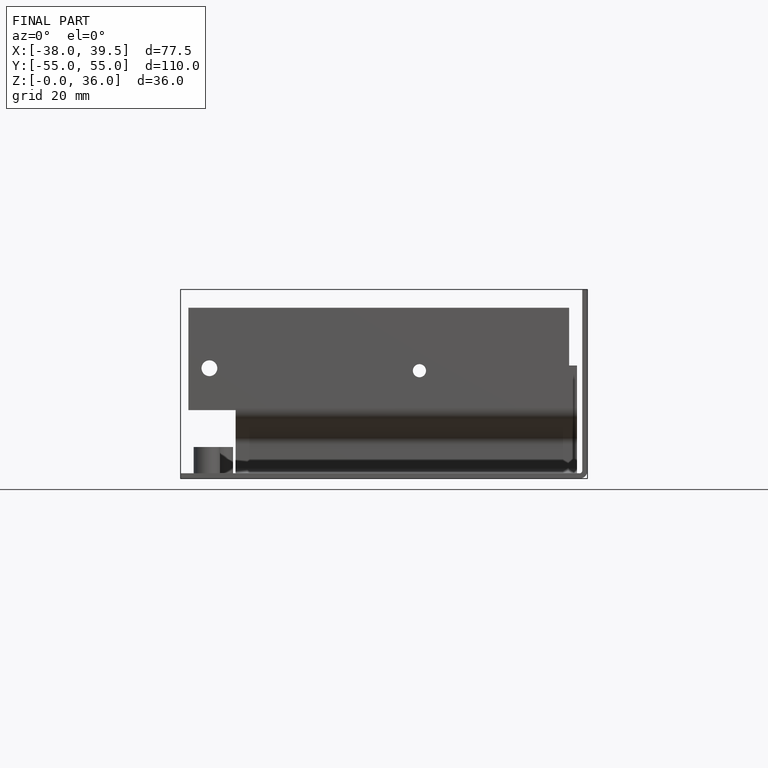
[diagram: finished part — front view with bounding-box wireframe]
